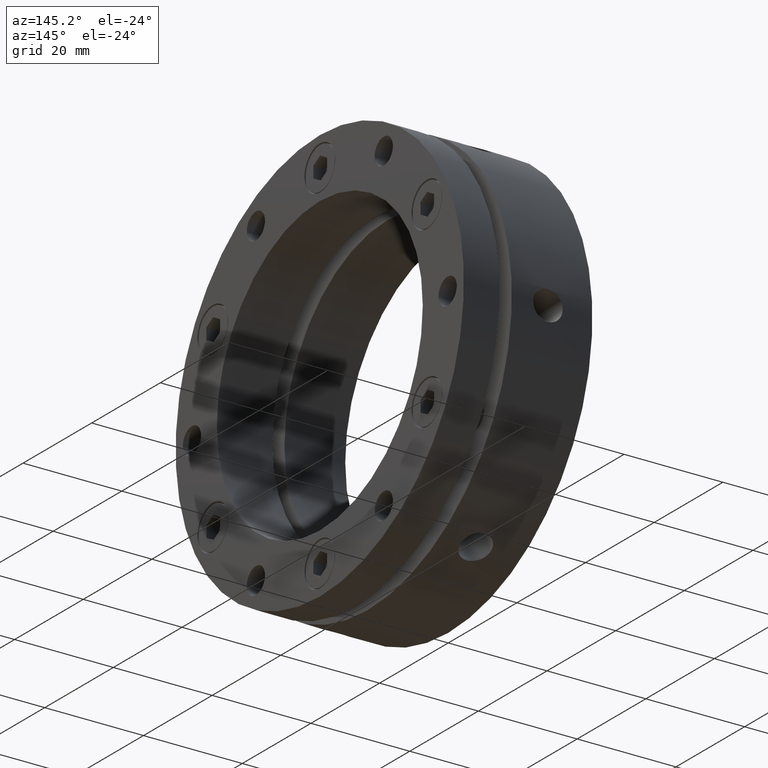
[diagram: clean part render]
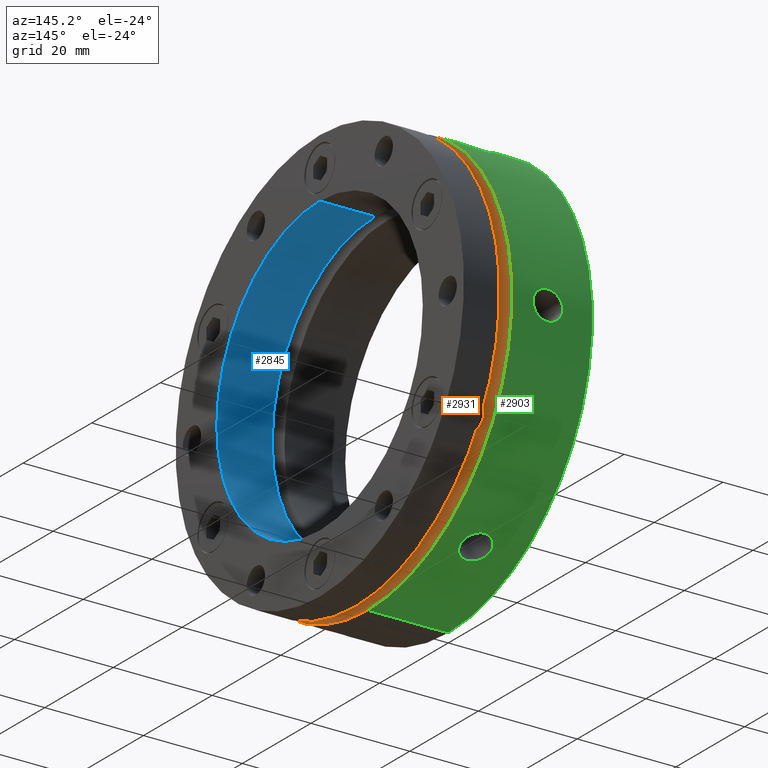
[diagram: same view with three faces highlighted in distinct colors, each labeled with its STEP entity id]
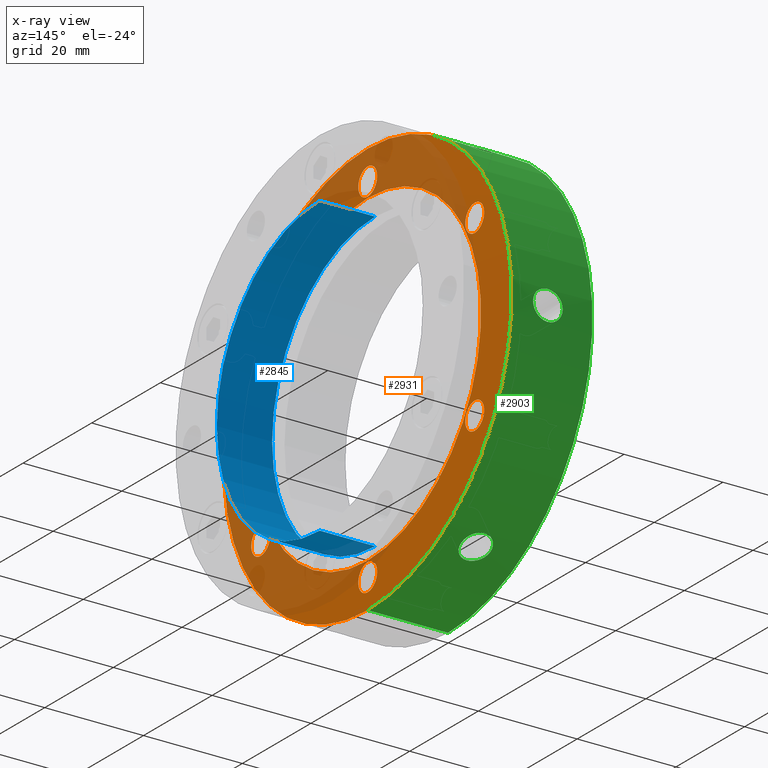
[diagram: x-ray of the same camera — body ghosted, the three highlighted faces saturated]
A machine part, auxiliary view with three faces highlighted in distinct colors.
The next image is the same camera in x-ray (body ghosted, the three faces saturated) — at least one of them is partly hidden behind the body in this view.
Their STEP definitions:

[orange] entity #2931 — the highlighted planar face has unit normal (-1, 0, 0).
#10 = VERTEX_POINT ( 'NONE', #3014 ) ;
#11 = VERTEX_POINT ( 'NONE', #3020 ) ;
#86 = VERTEX_POINT ( 'NONE', #3049 ) ;
#96 = VERTEX_POINT ( 'NONE', #3056 ) ;
#97 = VERTEX_POINT ( 'NONE', #3057 ) ;
#102 = VERTEX_POINT ( 'NONE', #3062 ) ;
#105 = VERTEX_POINT ( 'NONE', #3065 ) ;
#108 = VERTEX_POINT ( 'NONE', #3068 ) ;
#109 = VERTEX_POINT ( 'NONE', #3069 ) ;
#112 = VERTEX_POINT ( 'NONE', #3072 ) ;
#133 = CARTESIAN_POINT ( 'NONE',  ( 16.29999999999999400, 0.0000000000000000000, 0.0000000000000000000 ) ) ;
#134 = DIRECTION ( 'NONE',  ( -1.000000000000000000, -0.0000000000000000000, -0.0000000000000000000 ) ) ;
#135 = DIRECTION ( 'NONE',  ( 0.0000000000000000000, 0.0000000000000000000, -1.000000000000000000 ) ) ;
#154 = CARTESIAN_POINT ( 'NONE',  ( 16.29999999999999400, -31.17691453623981700, -18.00000000000000700 ) ) ;
#155 = DIRECTION ( 'NONE',  ( 1.000000000000000000, 0.0000000000000000000, 0.0000000000000000000 ) ) ;
#156 = DIRECTION ( 'NONE',  ( 0.0000000000000000000, 0.0000000000000000000, -1.000000000000000000 ) ) ;
#166 = CARTESIAN_POINT ( 'NONE',  ( 16.29999999999999400, 0.0000000000000000000, 0.0000000000000000000 ) ) ;
#167 = DIRECTION ( 'NONE',  ( -1.000000000000000000, -0.0000000000000000000, -0.0000000000000000000 ) ) ;
#168 = DIRECTION ( 'NONE',  ( 0.0000000000000000000, 0.0000000000000000000, -1.000000000000000000 ) ) ;
#271 = CARTESIAN_POINT ( 'NONE',  ( 16.29999999999999400, 31.17691453623979900, -18.00000000000002800 ) ) ;
#272 = DIRECTION ( 'NONE',  ( 1.000000000000000000, 0.0000000000000000000, 0.0000000000000000000 ) ) ;
#273 = DIRECTION ( 'NONE',  ( 0.0000000000000000000, 0.0000000000000000000, -1.000000000000000000 ) ) ;
#274 = CARTESIAN_POINT ( 'NONE',  ( 16.29999999999999400, -6.661337999999999900E-015, -36.00000000000002800 ) ) ;
#275 = DIRECTION ( 'NONE',  ( 1.000000000000000000, 0.0000000000000000000, 0.0000000000000000000 ) ) ;
#276 = DIRECTION ( 'NONE',  ( 0.0000000000000000000, 0.0000000000000000000, -1.000000000000000000 ) ) ;
#298 = CARTESIAN_POINT ( 'NONE',  ( 16.29999999999999400, 31.17691453623983500, 17.99999999999998900 ) ) ;
#299 = DIRECTION ( 'NONE',  ( 1.000000000000000000, 0.0000000000000000000, 0.0000000000000000000 ) ) ;
#300 = DIRECTION ( 'NONE',  ( 0.0000000000000000000, 0.0000000000000000000, -1.000000000000000000 ) ) ;
#306 = CARTESIAN_POINT ( 'NONE',  ( 16.29999999999999400, 0.0000000000000000000, 0.0000000000000000000 ) ) ;
#307 = DIRECTION ( 'NONE',  ( 1.000000000000000000, -0.0000000000000000000, -0.0000000000000000000 ) ) ;
#308 = DIRECTION ( 'NONE',  ( 0.0000000000000000000, 0.0000000000000000000, 1.000000000000000000 ) ) ;
#754 = EDGE_LOOP ( 'NONE', ( #1623, #1708 ) ) ;
#769 = EDGE_LOOP ( 'NONE', ( #1671, #1674 ) ) ;
#784 = EDGE_LOOP ( 'NONE', ( #1625, #1618 ) ) ;
#799 = EDGE_LOOP ( 'NONE', ( #1692, #1763 ) ) ;
#1151 = AXIS2_PLACEMENT_3D ( 'NONE', #3315, #3316, #3317 ) ;
#1156 = AXIS2_PLACEMENT_3D ( 'NONE', #3334, #3335, #3336 ) ;
#1159 = AXIS2_PLACEMENT_3D ( 'NONE', #3351, #3352, #3353 ) ;
#1161 = AXIS2_PLACEMENT_3D ( 'NONE', #3368, #3369, #3370 ) ;
#1164 = AXIS2_PLACEMENT_3D ( 'NONE', #3425, #3426, #3427 ) ;
#1166 = AXIS2_PLACEMENT_3D ( 'NONE', #3439, #3440, #3441 ) ;
#1181 = AXIS2_PLACEMENT_3D ( 'NONE', #3555, #3556, #3557 ) ;
#1182 = AXIS2_PLACEMENT_3D ( 'NONE', #3558, #3559, #3560 ) ;
#1183 = AXIS2_PLACEMENT_3D ( 'NONE', #3562, #3563, #3564 ) ;
#1450 = EDGE_LOOP ( 'NONE', ( #1672, #1617 ) ) ;
#1451 = EDGE_LOOP ( 'NONE', ( #1650, #1744 ) ) ;
#1463 = EDGE_LOOP ( 'NONE', ( #1633, #1622 ) ) ;
#1464 = EDGE_LOOP ( 'NONE', ( #1628, #1629 ) ) ;
#1503 = EDGE_CURVE ( 'NONE', #4499, #4498, #2079, .T. ) ;
#1510 = EDGE_CURVE ( 'NONE', #4503, #4502, #2089, .T. ) ;
#1517 = EDGE_CURVE ( 'NONE', #4507, #4506, #2099, .T. ) ;
#1524 = EDGE_CURVE ( 'NONE', #86, #96, #2111, .T. ) ;
#1531 = EDGE_CURVE ( 'NONE', #105, #102, #2120, .T. ) ;
#1536 = EDGE_CURVE ( 'NONE', #112, #97, #2128, .T. ) ;
#1547 = AXIS2_PLACEMENT_3D ( 'NONE', #4160, #4158, #4164 ) ;
#1576 = AXIS2_PLACEMENT_3D ( 'NONE', #133, #134, #135 ) ;
#1583 = AXIS2_PLACEMENT_3D ( 'NONE', #154, #155, #156 ) ;
#1586 = AXIS2_PLACEMENT_3D ( 'NONE', #166, #167, #168 ) ;
#1588 = AXIS2_PLACEMENT_3D ( 'NONE', #271, #272, #273 ) ;
#1589 = AXIS2_PLACEMENT_3D ( 'NONE', #274, #275, #276 ) ;
#1597 = AXIS2_PLACEMENT_3D ( 'NONE', #298, #299, #300 ) ;
#1617 = ORIENTED_EDGE ( 'NONE', *, *, #1531, .F. ) ;
#1618 = ORIENTED_EDGE ( 'NONE', *, *, #1503, .F. ) ;
#1622 = ORIENTED_EDGE ( 'NONE', *, *, #4684, .F. ) ;
#1623 = ORIENTED_EDGE ( 'NONE', *, *, #4608, .F. ) ;
#1625 = ORIENTED_EDGE ( 'NONE', *, *, #4616, .F. ) ;
#1628 = ORIENTED_EDGE ( 'NONE', *, *, #4599, .F. ) ;
#1629 = ORIENTED_EDGE ( 'NONE', *, *, #1524, .F. ) ;
#1633 = ORIENTED_EDGE ( 'NONE', *, *, #2179, .F. ) ;
#1650 = ORIENTED_EDGE ( 'NONE', *, *, #2178, .F. ) ;
#1671 = ORIENTED_EDGE ( 'NONE', *, *, #4607, .F. ) ;
#1672 = ORIENTED_EDGE ( 'NONE', *, *, #2177, .F. ) ;
#1674 = ORIENTED_EDGE ( 'NONE', *, *, #1510, .F. ) ;
#1692 = ORIENTED_EDGE ( 'NONE', *, *, #4602, .F. ) ;
#1708 = ORIENTED_EDGE ( 'NONE', *, *, #1517, .F. ) ;
#1744 = ORIENTED_EDGE ( 'NONE', *, *, #1536, .F. ) ;
#1763 = ORIENTED_EDGE ( 'NONE', *, *, #4529, .F. ) ;
#2079 = CIRCLE ( 'NONE', #1151, 2.750000000000000900 ) ;
#2089 = CIRCLE ( 'NONE', #1156, 2.749999999999999100 ) ;
#2099 = CIRCLE ( 'NONE', #1159, 2.750000000000002700 ) ;
#2111 = CIRCLE ( 'NONE', #1161, 2.749999999999999100 ) ;
#2120 = CIRCLE ( 'NONE', #1164, 2.749999999999999100 ) ;
#2128 = CIRCLE ( 'NONE', #1166, 2.750000000000002700 ) ;
#2147 = CIRCLE ( 'NONE', #1181, 2.749999999999999100 ) ;
#2149 = CIRCLE ( 'NONE', #1182, 2.750000000000002700 ) ;
#2150 = CIRCLE ( 'NONE', #1183, 33.00000000000000700 ) ;
#2177 = EDGE_CURVE ( 'NONE', #102, #105, #2147, .T. ) ;
#2178 = EDGE_CURVE ( 'NONE', #97, #112, #2149, .T. ) ;
#2179 = EDGE_CURVE ( 'NONE', #108, #109, #2150, .T. ) ;
#2514 = FACE_BOUND ( 'NONE', #1463, .T. ) ;
#2516 = FACE_BOUND ( 'NONE', #1464, .T. ) ;
#2518 = FACE_BOUND ( 'NONE', #1450, .T. ) ;
#2520 = FACE_BOUND ( 'NONE', #754, .T. ) ;
#2522 = FACE_BOUND ( 'NONE', #1451, .T. ) ;
#2523 = FACE_BOUND ( 'NONE', #769, .T. ) ;
#2524 = FACE_BOUND ( 'NONE', #784, .T. ) ;
#2525 = FACE_OUTER_BOUND ( 'NONE', #799, .T. ) ;
#2596 = CIRCLE ( 'NONE', #1576, 41.99999999999999300 ) ;
#2606 = CIRCLE ( 'NONE', #1583, 2.749999999999999100 ) ;
#2609 = CIRCLE ( 'NONE', #1586, 41.99999999999999300 ) ;
#2610 = CIRCLE ( 'NONE', #1588, 2.749999999999999100 ) ;
#2612 = CIRCLE ( 'NONE', #1589, 2.750000000000002700 ) ;
#2620 = CIRCLE ( 'NONE', #1597, 2.750000000000000900 ) ;
#2622 = CIRCLE ( 'NONE', #4531, 33.00000000000000700 ) ;
#2931 = ADVANCED_FACE ( 'NONE', ( #2514, #2522, #2518, #2516, #2520, #2523, #2524, #2525 ), #4162, .F. ) ;
#3014 = CARTESIAN_POINT ( 'NONE',  ( 16.29999999999999400, 0.0000000000000000000, -41.99999999999999300 ) ) ;
#3020 = CARTESIAN_POINT ( 'NONE',  ( 16.29999999999999400, 5.143516556418882500E-015, 41.99999999999999300 ) ) ;
#3049 = CARTESIAN_POINT ( 'NONE',  ( 16.29999999999999400, -31.17691453623981700, -15.25000000000000500 ) ) ;
#3056 = CARTESIAN_POINT ( 'NONE',  ( 16.29999999999999400, -31.17691453623981700, -20.75000000000000400 ) ) ;
#3057 = CARTESIAN_POINT ( 'NONE',  ( 16.29999999999999400, 0.0000000000000000000, 33.25000000000002100 ) ) ;
#3062 = CARTESIAN_POINT ( 'NONE',  ( 16.29999999999999400, -31.17691453623980600, 15.25000000000001800 ) ) ;
#3065 = CARTESIAN_POINT ( 'NONE',  ( 16.29999999999999400, -31.17691453623980600, 20.75000000000001400 ) ) ;
#3068 = CARTESIAN_POINT ( 'NONE',  ( 16.29999999999999400, 0.0000000000000000000, 33.00000000000000700 ) ) ;
#3069 = CARTESIAN_POINT ( 'NONE',  ( 16.29999999999999400, 4.041334437186267000E-015, -33.00000000000000700 ) ) ;
#3072 = CARTESIAN_POINT ( 'NONE',  ( 16.29999999999999400, 3.367778697655217600E-016, 38.75000000000002800 ) ) ;
#3315 = CARTESIAN_POINT ( 'NONE',  ( 16.29999999999999400, 31.17691453623983500, 17.99999999999998900 ) ) ;
#3316 = DIRECTION ( 'NONE',  ( 1.000000000000000000, 0.0000000000000000000, 0.0000000000000000000 ) ) ;
#3317 = DIRECTION ( 'NONE',  ( 0.0000000000000000000, 0.0000000000000000000, -1.000000000000000000 ) ) ;
#3334 = CARTESIAN_POINT ( 'NONE',  ( 16.29999999999999400, 31.17691453623979900, -18.00000000000002800 ) ) ;
#3335 = DIRECTION ( 'NONE',  ( 1.000000000000000000, 0.0000000000000000000, 0.0000000000000000000 ) ) ;
#3336 = DIRECTION ( 'NONE',  ( 0.0000000000000000000, 0.0000000000000000000, -1.000000000000000000 ) ) ;
#3351 = CARTESIAN_POINT ( 'NONE',  ( 16.29999999999999400, -6.661337999999999900E-015, -36.00000000000002800 ) ) ;
#3352 = DIRECTION ( 'NONE',  ( 1.000000000000000000, 0.0000000000000000000, 0.0000000000000000000 ) ) ;
#3353 = DIRECTION ( 'NONE',  ( 0.0000000000000000000, 0.0000000000000000000, -1.000000000000000000 ) ) ;
#3368 = CARTESIAN_POINT ( 'NONE',  ( 16.29999999999999400, -31.17691453623981700, -18.00000000000000700 ) ) ;
#3369 = DIRECTION ( 'NONE',  ( 1.000000000000000000, 0.0000000000000000000, 0.0000000000000000000 ) ) ;
#3370 = DIRECTION ( 'NONE',  ( 0.0000000000000000000, 0.0000000000000000000, -1.000000000000000000 ) ) ;
#3425 = CARTESIAN_POINT ( 'NONE',  ( 16.29999999999999400, -31.17691453623980600, 18.00000000000001400 ) ) ;
#3426 = DIRECTION ( 'NONE',  ( 1.000000000000000000, 0.0000000000000000000, 0.0000000000000000000 ) ) ;
#3427 = DIRECTION ( 'NONE',  ( 0.0000000000000000000, 0.0000000000000000000, -1.000000000000000000 ) ) ;
#3439 = CARTESIAN_POINT ( 'NONE',  ( 16.29999999999999400, 0.0000000000000000000, 36.00000000000002800 ) ) ;
#3440 = DIRECTION ( 'NONE',  ( 1.000000000000000000, 0.0000000000000000000, 0.0000000000000000000 ) ) ;
#3441 = DIRECTION ( 'NONE',  ( 0.0000000000000000000, 0.0000000000000000000, -1.000000000000000000 ) ) ;
#3555 = CARTESIAN_POINT ( 'NONE',  ( 16.29999999999999400, -31.17691453623980600, 18.00000000000001400 ) ) ;
#3556 = DIRECTION ( 'NONE',  ( 1.000000000000000000, 0.0000000000000000000, 0.0000000000000000000 ) ) ;
#3557 = DIRECTION ( 'NONE',  ( 0.0000000000000000000, 0.0000000000000000000, -1.000000000000000000 ) ) ;
#3558 = CARTESIAN_POINT ( 'NONE',  ( 16.29999999999999400, 0.0000000000000000000, 36.00000000000002800 ) ) ;
#3559 = DIRECTION ( 'NONE',  ( 1.000000000000000000, 0.0000000000000000000, 0.0000000000000000000 ) ) ;
#3560 = DIRECTION ( 'NONE',  ( 0.0000000000000000000, 0.0000000000000000000, -1.000000000000000000 ) ) ;
#3562 = CARTESIAN_POINT ( 'NONE',  ( 16.29999999999999400, 0.0000000000000000000, 0.0000000000000000000 ) ) ;
#3563 = DIRECTION ( 'NONE',  ( 1.000000000000000000, -0.0000000000000000000, -0.0000000000000000000 ) ) ;
#3564 = DIRECTION ( 'NONE',  ( 0.0000000000000000000, 0.0000000000000000000, 1.000000000000000000 ) ) ;
#4158 = DIRECTION ( 'NONE',  ( -1.000000000000000000, 0.0000000000000000000, 0.0000000000000000000 ) ) ;
#4160 = CARTESIAN_POINT ( 'NONE',  ( 16.29999999999999400, 37.50000000000000700, 0.0000000000000000000 ) ) ;
#4162 = PLANE ( 'NONE',  #1547 ) ;
#4164 = DIRECTION ( 'NONE',  ( 0.0000000000000000000, 0.0000000000000000000, 1.000000000000000000 ) ) ;
#4257 = CARTESIAN_POINT ( 'NONE',  ( 16.29999999999999400, 31.17691453623983500, 15.24999999999998800 ) ) ;
#4258 = CARTESIAN_POINT ( 'NONE',  ( 16.29999999999999400, 31.17691453623983500, 20.74999999999998600 ) ) ;
#4261 = CARTESIAN_POINT ( 'NONE',  ( 16.29999999999999400, 31.17691453623979900, -20.75000000000002800 ) ) ;
#4262 = CARTESIAN_POINT ( 'NONE',  ( 16.29999999999999400, 31.17691453623979900, -15.25000000000003000 ) ) ;
#4265 = CARTESIAN_POINT ( 'NONE',  ( 16.29999999999999400, -6.661337999999999900E-015, -38.75000000000002800 ) ) ;
#4266 = CARTESIAN_POINT ( 'NONE',  ( 16.29999999999999400, -6.324560130234478200E-015, -33.25000000000002100 ) ) ;
#4498 = VERTEX_POINT ( 'NONE', #4257 ) ;
#4499 = VERTEX_POINT ( 'NONE', #4258 ) ;
#4502 = VERTEX_POINT ( 'NONE', #4261 ) ;
#4503 = VERTEX_POINT ( 'NONE', #4262 ) ;
#4506 = VERTEX_POINT ( 'NONE', #4265 ) ;
#4507 = VERTEX_POINT ( 'NONE', #4266 ) ;
#4529 = EDGE_CURVE ( 'NONE', #11, #10, #2596, .T. ) ;
#4531 = AXIS2_PLACEMENT_3D ( 'NONE', #306, #307, #308 ) ;
#4599 = EDGE_CURVE ( 'NONE', #96, #86, #2606, .T. ) ;
#4602 = EDGE_CURVE ( 'NONE', #10, #11, #2609, .T. ) ;
#4607 = EDGE_CURVE ( 'NONE', #4502, #4503, #2610, .T. ) ;
#4608 = EDGE_CURVE ( 'NONE', #4506, #4507, #2612, .T. ) ;
#4616 = EDGE_CURVE ( 'NONE', #4498, #4499, #2620, .T. ) ;
#4684 = EDGE_CURVE ( 'NONE', #109, #108, #2622, .T. ) ;

[blue] entity #2845 — the highlighted cylindrical surface (partial cylindrical patch) has radius 30 mm, axis along (1, 0, 0).
#302 = CARTESIAN_POINT ( 'NONE',  ( 25.99999999999999300, 0.0000000000000000000, 0.0000000000000000000 ) ) ;
#303 = DIRECTION ( 'NONE',  ( -1.000000000000000000, -0.0000000000000000000, -0.0000000000000000000 ) ) ;
#304 = DIRECTION ( 'NONE',  ( 0.0000000000000000000, 0.0000000000000000000, -1.000000000000000000 ) ) ;
#830 = EDGE_CURVE ( 'NONE', #1885, #1890, #1970, .T. ) ;
#891 = ORIENTED_EDGE ( 'NONE', *, *, #2738, .F. ) ;
#892 = ORIENTED_EDGE ( 'NONE', *, *, #4617, .F. ) ;
#893 = ORIENTED_EDGE ( 'NONE', *, *, #830, .T. ) ;
#894 = ORIENTED_EDGE ( 'NONE', *, *, #1117, .T. ) ;
#1117 = EDGE_CURVE ( 'NONE', #1884, #1885, #2020, .T. ) ;
#1211 = AXIS2_PLACEMENT_3D ( 'NONE', #302, #303, #304 ) ;
#1684 = EDGE_LOOP ( 'NONE', ( #894, #893, #892, #891 ) ) ;
#1839 = AXIS2_PLACEMENT_3D ( 'NONE', #3883, #3881, #3879 ) ;
#1884 = VERTEX_POINT ( 'NONE', #3452 ) ;
#1885 = VERTEX_POINT ( 'NONE', #3453 ) ;
#1889 = VERTEX_POINT ( 'NONE', #3457 ) ;
#1890 = VERTEX_POINT ( 'NONE', #3458 ) ;
#1970 = LINE ( 'NONE', #3111, #1975 ) ;
#1975 = VECTOR ( 'NONE', #3114, 1000.000000000000000 ) ;
#2020 = CIRCLE ( 'NONE', #2980, 30.00000000000000000 ) ;
#2155 = LINE ( 'NONE', #3578, #2158 ) ;
#2158 = VECTOR ( 'NONE', #3561, 1000.000000000000000 ) ;
#2303 = FACE_OUTER_BOUND ( 'NONE', #1684, .T. ) ;
#2314 = CYLINDRICAL_SURFACE ( 'NONE', #1839, 30.00000000000000000 ) ;
#2621 = CIRCLE ( 'NONE', #1211, 30.00000000000000000 ) ;
#2738 = EDGE_CURVE ( 'NONE', #1884, #1889, #2155, .T. ) ;
#2845 = ADVANCED_FACE ( 'NONE', ( #2303 ), #2314, .F. ) ;
#2980 = AXIS2_PLACEMENT_3D ( 'NONE', #3193, #3194, #3195 ) ;
#3111 = CARTESIAN_POINT ( 'NONE',  ( 12.99999999999999100, 3.673940397442059200E-015, 30.00000000000000000 ) ) ;
#3114 = DIRECTION ( 'NONE',  ( 1.000000000000000000, 0.0000000000000000000, 0.0000000000000000000 ) ) ;
#3193 = CARTESIAN_POINT ( 'NONE',  ( 14.80000000000000400, 0.0000000000000000000, 0.0000000000000000000 ) ) ;
#3194 = DIRECTION ( 'NONE',  ( -1.000000000000000000, -0.0000000000000000000, -0.0000000000000000000 ) ) ;
#3195 = DIRECTION ( 'NONE',  ( 0.0000000000000000000, 0.0000000000000000000, -1.000000000000000000 ) ) ;
#3452 = CARTESIAN_POINT ( 'NONE',  ( 14.80000000000000400, 0.0000000000000000000, -30.00000000000000000 ) ) ;
#3453 = CARTESIAN_POINT ( 'NONE',  ( 14.80000000000000400, 3.673940397442059200E-015, 30.00000000000000000 ) ) ;
#3457 = CARTESIAN_POINT ( 'NONE',  ( 25.99999999999999300, 0.0000000000000000000, -30.00000000000000000 ) ) ;
#3458 = CARTESIAN_POINT ( 'NONE',  ( 25.99999999999999300, 3.673940397442059200E-015, 30.00000000000000000 ) ) ;
#3561 = DIRECTION ( 'NONE',  ( 1.000000000000000000, 0.0000000000000000000, 0.0000000000000000000 ) ) ;
#3578 = CARTESIAN_POINT ( 'NONE',  ( 12.99999999999999100, 0.0000000000000000000, -30.00000000000000000 ) ) ;
#3879 = DIRECTION ( 'NONE',  ( 0.0000000000000000000, 0.0000000000000000000, -1.000000000000000000 ) ) ;
#3881 = DIRECTION ( 'NONE',  ( 1.000000000000000000, 0.0000000000000000000, 0.0000000000000000000 ) ) ;
#3883 = CARTESIAN_POINT ( 'NONE',  ( 12.99999999999999100, 0.0000000000000000000, 0.0000000000000000000 ) ) ;
#4617 = EDGE_CURVE ( 'NONE', #1889, #1890, #2621, .T. ) ;

[green] entity #2903 — the highlighted cylindrical surface (partial cylindrical patch) has radius 42 mm, axis along (1, 0, 0).
#10 = VERTEX_POINT ( 'NONE', #3014 ) ;
#11 = VERTEX_POINT ( 'NONE', #3020 ) ;
#13 = VERTEX_POINT ( 'NONE', #3022 ) ;
#15 = VERTEX_POINT ( 'NONE', #3024 ) ;
#16 = VERTEX_POINT ( 'NONE', #3025 ) ;
#17 = VERTEX_POINT ( 'NONE', #3026 ) ;
#18 = VERTEX_POINT ( 'NONE', #3027 ) ;
#19 = VERTEX_POINT ( 'NONE', #3028 ) ;
#20 = VERTEX_POINT ( 'NONE', #3029 ) ;
#26 = VERTEX_POINT ( 'NONE', #3035 ) ;
#66 = AXIS2_PLACEMENT_3D ( 'NONE', #4063, #4068, #4067 ) ;
#120 = CARTESIAN_POINT ( 'NONE',  ( 10.32777306953377100, 23.29257486986393700, -34.94941432322077900 ) ) ;
#121 = CARTESIAN_POINT ( 'NONE',  ( 9.966766644062831300, 23.41703039248159600, -34.86614824155313400 ) ) ;
#122 = CARTESIAN_POINT ( 'NONE',  ( 9.777624557390540300, 23.46483916964225400, -34.83393182916697100 ) ) ;
#123 = CARTESIAN_POINT ( 'NONE',  ( 9.390377803947187000, 23.52869816040058700, -34.79082992417673400 ) ) ;
#124 = CARTESIAN_POINT ( 'NONE',  ( 9.195701865672591100, 23.54443627700671000, -34.78015986734348500 ) ) ;
#125 = CARTESIAN_POINT ( 'NONE',  ( 8.999999999999985800, 23.54443627700670300, -34.78015986734347800 ) ) ;
#126 = DIRECTION ( 'NONE',  ( 1.000000000000000000, 0.0000000000000000000, 0.0000000000000000000 ) ) ;
#127 = CARTESIAN_POINT ( 'NONE',  ( 12.99999999999998800, 0.0000000000000000000, -41.99999999999999300 ) ) ;
#128 = CARTESIAN_POINT ( 'NONE',  ( 12.99999999999998800, 5.143516556418882500E-015, 41.99999999999999300 ) ) ;
#129 = CARTESIAN_POINT ( 'NONE',  ( -1.387778780781445700E-014, 0.0000000000000000000, 0.0000000000000000000 ) ) ;
#130 = DIRECTION ( 'NONE',  ( 1.000000000000000000, 0.0000000000000000000, 0.0000000000000000000 ) ) ;
#131 = DIRECTION ( 'NONE',  ( 0.0000000000000000000, 0.0000000000000000000, -1.000000000000000000 ) ) ;
#132 = DIRECTION ( 'NONE',  ( 1.000000000000000000, 0.0000000000000000000, 0.0000000000000000000 ) ) ;
#133 = CARTESIAN_POINT ( 'NONE',  ( 16.29999999999999400, 0.0000000000000000000, 0.0000000000000000000 ) ) ;
#134 = DIRECTION ( 'NONE',  ( -1.000000000000000000, -0.0000000000000000000, -0.0000000000000000000 ) ) ;
#135 = DIRECTION ( 'NONE',  ( 0.0000000000000000000, 0.0000000000000000000, -1.000000000000000000 ) ) ;
#1025 = ORIENTED_EDGE ( 'NONE', *, *, #4530, .F. ) ;
#1026 = ORIENTED_EDGE ( 'NONE', *, *, #4529, .T. ) ;
#1027 = ORIENTED_EDGE ( 'NONE', *, *, #4528, .T. ) ;
#1028 = ORIENTED_EDGE ( 'NONE', *, *, #4527, .T. ) ;
#1029 = ORIENTED_EDGE ( 'NONE', *, *, #4526, .T. ) ;
#1030 = ORIENTED_EDGE ( 'NONE', *, *, #4525, .T. ) ;
#1031 = ORIENTED_EDGE ( 'NONE', *, *, #4524, .T. ) ;
#1032 = ORIENTED_EDGE ( 'NONE', *, *, #4523, .T. ) ;
#1033 = ORIENTED_EDGE ( 'NONE', *, *, #4521, .T. ) ;
#1034 = ORIENTED_EDGE ( 'NONE', *, *, #4522, .T. ) ;
#1127 = CARTESIAN_POINT ( 'NONE',  ( 10.50230680320481200, 23.21498749985252600, -35.00109141780330900 ) ) ;
#1575 = AXIS2_PLACEMENT_3D ( 'NONE', #129, #130, #131 ) ;
#1576 = AXIS2_PLACEMENT_3D ( 'NONE', #133, #134, #135 ) ;
#1603 = B_SPLINE_CURVE_WITH_KNOTS ( 'NONE', 3,
 ( #4294, #4295, #4330, #4331, #4332, #4333, #4334, #4335, #4336, #4337, #4338, #4339, #4340, #4341, #4342, #4343, #4344, #4345, #4346, #4347, #4348, #4349, #4350, #4351, #4352, #4353, #4354, #4355, #4356, #4357, #4358, #4359, #4360, #4361 ),
 .UNSPECIFIED., .F., .F.,
 ( 4, 2, 2, 2, 2, 2, 2, 2, 2, 2, 2, 2, 2, 2, 2, 2, 4 ),
 ( 0.01407260901735648800, 0.01465888135920776300, 0.01524515370105903600, 0.01583142604291031000, 0.01641769838476158200, 0.01700397072661285300, 0.01759024306846412500, 0.01817651541031539700, 0.01876278775216667200, 0.01934906009401794400, 0.01993533243586921600, 0.02052160477772048800, 0.02110787711957175900, 0.02169414946142303500, 0.02228042180327430600, 0.02286669414512557800, 0.02345296648697685000 ),
 .UNSPECIFIED. ) ;
#1605 = B_SPLINE_CURVE_WITH_KNOTS ( 'NONE', 3,
 ( #4291, #4287, #4296, #4297, #4298, #4299, #4300, #4301, #4302, #4303, #4304, #4305, #4306, #4307, #4308, #4309, #4310, #4311, #4312, #4313, #4314, #4315, #4316, #4317, #4318, #4319, #4320, #4321, #4322, #4323, #4324, #4325, #4326, #4327 ),
 .UNSPECIFIED., .F., .F.,
 ( 4, 2, 2, 2, 2, 2, 2, 2, 2, 2, 2, 2, 2, 2, 2, 2, 4 ),
 ( 0.004692251542795059500, 0.005278523884955148500, 0.005864796227115238300, 0.006451068569275327300, 0.007037340911435416300, 0.007623613253595505300, 0.008209885595755594300, 0.008796157937915685000, 0.009382430280075772200, 0.009968702622235863000, 0.01055497496439595000, 0.01114124730655604100, 0.01172751964871613000, 0.01231379199087621900, 0.01290006433303631000, 0.01348633667519639700, 0.01407260901735648800 ),
 .UNSPECIFIED. ) ;
#1606 = B_SPLINE_CURVE_WITH_KNOTS ( 'NONE', 3,
 ( #4430, #4431, #4464, #4465, #4466, #4467, #4468, #4469, #4470, #4471, #4472, #4473, #4474, #4475, #4476, #4477, #4478, #4479, #4480, #4481, #4482, #4483, #4484, #4485, #4486, #4487, #3367, #1127, #120, #121, #122, #123, #124, #125 ),
 .UNSPECIFIED., .F., .F.,
 ( 4, 2, 2, 2, 2, 2, 2, 2, 2, 2, 2, 2, 2, 2, 2, 2, 4 ),
 ( 0.004692251542795049100, 0.005278523884955138100, 0.005864796227115227900, 0.006451068569275316900, 0.007037340911435405900, 0.007623613253595494900, 0.008209885595755583900, 0.008796157937915674600, 0.009382430280075761800, 0.009968702622235852500, 0.01055497496439594000, 0.01114124730655603100, 0.01172751964871612000, 0.01231379199087620800, 0.01290006433303629900, 0.01348633667519638600, 0.01407260901735647700 ),
 .UNSPECIFIED. ) ;
#1610 = B_SPLINE_CURVE_WITH_KNOTS ( 'NONE', 3,
 ( #4328, #4329, #4364, #4365, #4366, #4367, #4368, #4369, #4370, #4371, #4372, #4373, #4374, #4375, #4376, #4377, #4378, #4379, #4380, #4381, #4382, #4383, #4384, #4385, #4386, #4387, #4388, #4389, #4390, #4391, #4392, #4393, #4394, #4395 ),
 .UNSPECIFIED., .F., .F.,
 ( 4, 2, 2, 2, 2, 2, 2, 2, 2, 2, 2, 2, 2, 2, 2, 2, 4 ),
 ( 0.01407260901735648600, 0.01465888135920776300, 0.01524515370105904000, 0.01583142604291031000, 0.01641769838476158200, 0.01700397072661285300, 0.01759024306846412900, 0.01817651541031539700, 0.01876278775216667200, 0.01934906009401794400, 0.01993533243586921600, 0.02052160477772048800, 0.02110787711957175900, 0.02169414946142303500, 0.02228042180327430300, 0.02286669414512557800, 0.02345296648697685000 ),
 .UNSPECIFIED. ) ;
#1611 = B_SPLINE_CURVE_WITH_KNOTS ( 'NONE', 3,
 ( #4362, #4363, #4398, #4399, #4400, #4401, #4402, #4403, #4404, #4405, #4406, #4407, #4408, #4409, #4410, #4411, #4412, #4413, #4414, #4415, #4416, #4417, #4418, #4419, #4420, #4421, #4422, #4423, #4424, #4425, #4426, #4427, #4428, #4429 ),
 .UNSPECIFIED., .F., .F.,
 ( 4, 2, 2, 2, 2, 2, 2, 2, 2, 2, 2, 2, 2, 2, 2, 2, 4 ),
 ( 0.004692251542795052500, 0.005278523884955142400, 0.005864796227115231400, 0.006451068569275321200, 0.007037340911435411100, 0.007623613253595500900, 0.008209885595755590800, 0.008796157937915679800, 0.009382430280075768800, 0.009968702622235859500, 0.01055497496439595000, 0.01114124730655603700, 0.01172751964871612800, 0.01231379199087621900, 0.01290006433303630600, 0.01348633667519639700, 0.01407260901735648800 ),
 .UNSPECIFIED. ) ;
#1612 = B_SPLINE_CURVE_WITH_KNOTS ( 'NONE', 3,
 ( #4396, #4397, #4432, #4433, #4434, #4435, #4436, #4437, #4438, #4439, #4440, #4441, #4442, #4443, #4444, #4445, #4446, #4447, #4448, #4449, #4450, #4451, #4452, #4453, #4454, #4455, #4456, #4457, #4458, #4459, #4460, #4461, #4462, #4463 ),
 .UNSPECIFIED., .F., .F.,
 ( 4, 2, 2, 2, 2, 2, 2, 2, 2, 2, 2, 2, 2, 2, 2, 2, 4 ),
 ( 0.01407260901735647700, 0.01465888135920774700, 0.01524515370105901700, 0.01583142604291028900, 0.01641769838476156400, 0.01700397072661283600, 0.01759024306846410800, 0.01817651541031538300, 0.01876278775216665500, 0.01934906009401792700, 0.01993533243586919800, 0.02052160477772047000, 0.02110787711957174500, 0.02169414946142301700, 0.02228042180327428900, 0.02286669414512556400, 0.02345296648697683600 ),
 .UNSPECIFIED. ) ;
#1731 = EDGE_LOOP ( 'NONE', ( #1032, #1031 ) ) ;
#1738 = EDGE_LOOP ( 'NONE', ( #1030, #1029 ) ) ;
#1752 = EDGE_LOOP ( 'NONE', ( #1034, #1033 ) ) ;
#1753 = EDGE_LOOP ( 'NONE', ( #1028, #1027, #1026, #1025 ) ) ;
#2451 = FACE_BOUND ( 'NONE', #1738, .T. ) ;
#2453 = FACE_BOUND ( 'NONE', #1752, .T. ) ;
#2457 = FACE_OUTER_BOUND ( 'NONE', #1753, .T. ) ;
#2458 = FACE_BOUND ( 'NONE', #1731, .T. ) ;
#2462 = CYLINDRICAL_SURFACE ( 'NONE', #66, 41.99999999999999300 ) ;
#2593 = CIRCLE ( 'NONE', #1575, 41.99999999999999300 ) ;
#2595 = LINE ( 'NONE', #128, #2597 ) ;
#2596 = CIRCLE ( 'NONE', #1576, 41.99999999999999300 ) ;
#2597 = VECTOR ( 'NONE', #132, 1000.000000000000000 ) ;
#2598 = LINE ( 'NONE', #127, #2600 ) ;
#2600 = VECTOR ( 'NONE', #126, 1000.000000000000000 ) ;
#2903 = ADVANCED_FACE ( 'NONE', ( #2453, #2458, #2451, #2457 ), #2462, .T. ) ;
#3014 = CARTESIAN_POINT ( 'NONE',  ( 16.29999999999999400, 0.0000000000000000000, -41.99999999999999300 ) ) ;
#3020 = CARTESIAN_POINT ( 'NONE',  ( 16.29999999999999400, 5.143516556418882500E-015, 41.99999999999999300 ) ) ;
#3022 = CARTESIAN_POINT ( 'NONE',  ( -1.387778780781445700E-014, 5.143516556418882500E-015, 41.99999999999999300 ) ) ;
#3024 = CARTESIAN_POINT ( 'NONE',  ( 8.999999999999985800, 18.34828385430007500, -37.78015986734348500 ) ) ;
#3025 = CARTESIAN_POINT ( 'NONE',  ( -1.387778780781445700E-014, 0.0000000000000000000, -41.99999999999999300 ) ) ;
#3026 = CARTESIAN_POINT ( 'NONE',  ( 8.999999999999985800, 41.89272013130681700, -3.000000000000042200 ) ) ;
#3027 = CARTESIAN_POINT ( 'NONE',  ( 8.999999999999985800, 23.54443627700670300, -34.78015986734347800 ) ) ;
#3028 = CARTESIAN_POINT ( 'NONE',  ( 8.999999999999985800, 18.34828385430014200, 37.78015986734345000 ) ) ;
#3029 = CARTESIAN_POINT ( 'NONE',  ( 8.999999999999985800, 23.54443627700676700, 34.78015986734343600 ) ) ;
#3035 = CARTESIAN_POINT ( 'NONE',  ( 8.999999999999985800, 41.89272013130682400, 2.999999999999957800 ) ) ;
#3367 = CARTESIAN_POINT ( 'NONE',  ( 10.83034168531925800, 23.03174939573135700, -35.12193851181853400 ) ) ;
#4063 = CARTESIAN_POINT ( 'NONE',  ( 12.99999999999998800, 0.0000000000000000000, 0.0000000000000000000 ) ) ;
#4067 = DIRECTION ( 'NONE',  ( 0.0000000000000000000, 0.0000000000000000000, -1.000000000000000000 ) ) ;
#4068 = DIRECTION ( 'NONE',  ( 1.000000000000000000, 0.0000000000000000000, 0.0000000000000000000 ) ) ;
#4287 = CARTESIAN_POINT ( 'NONE',  ( 9.195702098611667100, 23.54443627700676300, 34.78015986734343600 ) ) ;
#4291 = CARTESIAN_POINT ( 'NONE',  ( 8.999999999999985800, 23.54443627700676700, 34.78015986734343600 ) ) ;
#4294 = CARTESIAN_POINT ( 'NONE',  ( 8.999999999999985800, 18.34828385430014200, 37.78015986734345000 ) ) ;
#4295 = CARTESIAN_POINT ( 'NONE',  ( 8.804298134430462500, 18.34828385430014600, 37.78015986734345700 ) ) ;
#4296 = CARTESIAN_POINT ( 'NONE',  ( 9.394481186594182600, 23.52818066251644100, 34.79117983177882000 ) ) ;
#4297 = CARTESIAN_POINT ( 'NONE',  ( 9.779191086268483000, 23.46441930675112900, 34.83421458813374000 ) ) ;
#4298 = CARTESIAN_POINT ( 'NONE',  ( 9.966181678907283000, 23.41726471791952600, 34.86599192279577900 ) ) ;
#4299 = CARTESIAN_POINT ( 'NONE',  ( 10.32937541182880300, 23.29198971610796700, 34.94980535989148500 ) ) ;
#4300 = CARTESIAN_POINT ( 'NONE',  ( 10.50491705497772300, 23.21361270445304100, 35.00200027881303600 ) ) ;
#4301 = CARTESIAN_POINT ( 'NONE',  ( 10.82982896583911100, 23.03195198428438700, 35.12180271717256400 ) ) ;
#4302 = CARTESIAN_POINT ( 'NONE',  ( 10.98128604015730800, 22.92804558339596000, 35.18983350287545200 ) ) ;
#4303 = CARTESIAN_POINT ( 'NONE',  ( 11.26133246761766100, 22.69260204005540500, 35.34212032244318600 ) ) ;
#4304 = CARTESIAN_POINT ( 'NONE',  ( 11.38547439397143200, 22.56475999290076100, 35.42397536256916600 ) ) ;
#4305 = CARTESIAN_POINT ( 'NONE',  ( 11.60263425019564900, 22.28988174980573300, 35.59757850760076500 ) ) ;
#4306 = CARTESIAN_POINT ( 'NONE',  ( 11.69652081363367700, 22.14101769084388100, 35.69045223365901600 ) ) ;
#4307 = CARTESIAN_POINT ( 'NONE',  ( 11.84701121364354900, 21.83124564563639000, 35.88077143247117100 ) ) ;
#4308 = CARTESIAN_POINT ( 'NONE',  ( 11.90371099739915900, 21.67126618765346200, 35.97767617119714600 ) ) ;
#4309 = CARTESIAN_POINT ( 'NONE',  ( 11.98039329992507600, 21.34099436421389500, 36.17456178590488500 ) ) ;
#4310 = CARTESIAN_POINT ( 'NONE',  ( 12.00013855662810200, 21.16984155897510400, 36.27502031710782400 ) ) ;
#4311 = CARTESIAN_POINT ( 'NONE',  ( 11.99985996181589200, 20.82650681281473800, 36.47322174711847300 ) ) ;
#4312 = CARTESIAN_POINT ( 'NONE',  ( 11.98027083798314300, 20.65701698473761300, 36.56944637584266600 ) ) ;
#4313 = CARTESIAN_POINT ( 'NONE',  ( 11.90378018200338600, 20.32229057878408800, 36.75651322656753500 ) ) ;
#4314 = CARTESIAN_POINT ( 'NONE',  ( 11.84594316096082200, 20.15529415611421600, 36.84829853645491900 ) ) ;
#4315 = CARTESIAN_POINT ( 'NONE',  ( 11.69512843544729600, 19.83585282130023600, 37.02123620846435200 ) ) ;
#4316 = CARTESIAN_POINT ( 'NONE',  ( 11.60287871710528900, 19.68376729212572200, 37.10223579319255500 ) ) ;
#4317 = CARTESIAN_POINT ( 'NONE',  ( 11.38497931220528500, 19.39504961194617000, 37.25397490489253700 ) ) ;
#4318 = CARTESIAN_POINT ( 'NONE',  ( 11.25822479886922900, 19.25793223450822500, 37.32494071512204700 ) ) ;
#4319 = CARTESIAN_POINT ( 'NONE',  ( 10.98139340832284500, 19.01153543313582300, 37.45104369454751500 ) ) ;
#4320 = CARTESIAN_POINT ( 'NONE',  ( 10.83034168531925600, 18.90061628352421900, 37.50704932620950400 ) ) ;
#4321 = CARTESIAN_POINT ( 'NONE',  ( 10.50230680320481000, 18.70434057807292300, 37.60531463231212300 ) ) ;
#4322 = CARTESIAN_POINT ( 'NONE',  ( 10.32777306953377100, 18.62079321636496900, 37.64666871846355200 ) ) ;
#4323 = CARTESIAN_POINT ( 'NONE',  ( 9.966766644062833100, 18.48645491305839200, 37.71281732185789800 ) ) ;
#4324 = CARTESIAN_POINT ( 'NONE',  ( 9.777624557390542000, 18.43465029293283000, 37.73811273120981700 ) ) ;
#4325 = CARTESIAN_POINT ( 'NONE',  ( 9.390377803947190600, 18.36539345288061400, 37.77186528697144000 ) ) ;
#4326 = CARTESIAN_POINT ( 'NONE',  ( 9.195701865672594600, 18.34828385430014900, 37.78015986734345700 ) ) ;
#4327 = CARTESIAN_POINT ( 'NONE',  ( 8.999999999999985800, 18.34828385430014200, 37.78015986734345000 ) ) ;
#4328 = CARTESIAN_POINT ( 'NONE',  ( 8.999999999999985800, 41.89272013130682400, 2.999999999999957800 ) ) ;
#4329 = CARTESIAN_POINT ( 'NONE',  ( 8.804298134430462500, 41.89272013130682400, 2.999999999999956900 ) ) ;
#4330 = CARTESIAN_POINT ( 'NONE',  ( 8.605519284417161100, 18.36595518806704400, 37.77159209509405700 ) ) ;
#4331 = CARTESIAN_POINT ( 'NONE',  ( 8.220809817058391600, 18.43510489642397900, 37.73789059852317300 ) ) ;
#4332 = CARTESIAN_POINT ( 'NONE',  ( 8.033819428259617400, 18.48620205116182200, 37.71294225231255800 ) ) ;
#4333 = CARTESIAN_POINT ( 'NONE',  ( 7.670626075952129400, 18.62142379796191300, 37.64635779646339800 ) ) ;
#4334 = CARTESIAN_POINT ( 'NONE',  ( 7.495084572008603500, 18.70581424361890300, 37.60457886669166800 ) ) ;
#4335 = CARTESIAN_POINT ( 'NONE',  ( 7.170172889322777200, 18.90039613113400900, 37.50715750819067300 ) ) ;
#4336 = CARTESIAN_POINT ( 'NONE',  ( 7.018715903985276200, 19.01126547600418700, 37.45118744639849200 ) ) ;
#4337 = CARTESIAN_POINT ( 'NONE',  ( 6.738669589994422900, 19.26087093677739400, 37.32343107085934300 ) ) ;
#4338 = CARTESIAN_POINT ( 'NONE',  ( 6.614527601888633000, 19.39568028229084700, 37.25364425538547400 ) ) ;
#4339 = CARTESIAN_POINT ( 'NONE',  ( 6.397367632858563800, 19.68346357377283300, 37.10239460815999000 ) ) ;
#4340 = CARTESIAN_POINT ( 'NONE',  ( 6.303480977172718300, 19.83832628408992300, 37.01991160401504300 ) ) ;
#4341 = CARTESIAN_POINT ( 'NONE',  ( 6.152990221228551000, 20.15803306974140300, 36.84680105086889800 ) ) ;
#4342 = CARTESIAN_POINT ( 'NONE',  ( 6.096290224757327200, 20.32194450862708400, 36.75670730794792700 ) ) ;
#4343 = CARTESIAN_POINT ( 'NONE',  ( 6.019607395505936200, 20.65758783280886500, 36.56912667351597400 ) ) ;
#4344 = CARTESIAN_POINT ( 'NONE',  ( 5.999861813157792800, 20.83016316350281000, 36.47113369967224400 ) ) ;
#4345 = CARTESIAN_POINT ( 'NONE',  ( 6.000139660453848800, 21.17347855588090200, 36.27289754901267600 ) ) ;
#4346 = CARTESIAN_POINT ( 'NONE',  ( 6.019728474804789900, 21.34155670393780100, 36.17422724128173400 ) ) ;
#4347 = CARTESIAN_POINT ( 'NONE',  ( 6.096218594119055600, 21.67092505769630200, 35.97787884513194700 ) ) ;
#4348 = CARTESIAN_POINT ( 'NONE',  ( 6.154055377228690600, 21.83391191946069300, 35.87914823364283700 ) ) ;
#4349 = CARTESIAN_POINT ( 'NONE',  ( 6.304869796599824400, 22.14340161881217000, 35.68897242043360100 ) ) ;
#4350 = CARTESIAN_POINT ( 'NONE',  ( 6.397119409544907300, 22.28959236353526000, 35.59776212110927000 ) ) ;
#4351 = CARTESIAN_POINT ( 'NONE',  ( 6.615018672465890100, 22.56536165668527300, 35.42359452492997500 ) ) ;
#4352 = CARTESIAN_POINT ( 'NONE',  ( 6.741773181739617400, 22.69537882185031900, 35.34033012794571200 ) ) ;
#4353 = CARTESIAN_POINT ( 'NONE',  ( 7.018604658753417000, 22.92778611802183500, 35.18999541269828800 ) ) ;
#4354 = CARTESIAN_POINT ( 'NONE',  ( 7.169656456746684700, 23.03174821671587900, 35.12193928571073100 ) ) ;
#4355 = CARTESIAN_POINT ( 'NONE',  ( 7.497691542219294000, 23.21498671680194500, 35.00109193791037400 ) ) ;
#4356 = CARTESIAN_POINT ( 'NONE',  ( 7.672225461921946100, 23.29257428125025000, 34.94941471588225600 ) ) ;
#4357 = CARTESIAN_POINT ( 'NONE',  ( 8.033232247440658100, 23.41703009267032000, 34.86614844328606500 ) ) ;
#4358 = CARTESIAN_POINT ( 'NONE',  ( 8.222374523685871800, 23.46483897877110200, 34.83393195784413600 ) ) ;
#4359 = CARTESIAN_POINT ( 'NONE',  ( 8.609621732797695200, 23.52869812334331800, 34.79082994934083900 ) ) ;
#4360 = CARTESIAN_POINT ( 'NONE',  ( 8.804297901491391800, 23.54443627700677400, 34.78015986734344300 ) ) ;
#4361 = CARTESIAN_POINT ( 'NONE',  ( 8.999999999999985800, 23.54443627700676700, 34.78015986734343600 ) ) ;
#4362 = CARTESIAN_POINT ( 'NONE',  ( 8.999999999999985800, 41.89272013130681700, -3.000000000000042200 ) ) ;
#4363 = CARTESIAN_POINT ( 'NONE',  ( 9.195702098611667100, 41.89272013130682400, -3.000000000000040900 ) ) ;
#4364 = CARTESIAN_POINT ( 'NONE',  ( 8.605519284417155700, 41.89413588976845700, 2.980412289914376300 ) ) ;
#4365 = CARTESIAN_POINT ( 'NONE',  ( 8.220809817058391600, 41.89952439177098100, 2.903676137527539100 ) ) ;
#4366 = CARTESIAN_POINT ( 'NONE',  ( 8.033819428259619100, 41.90346706753910400, 2.846950530358160100 ) ) ;
#4367 = CARTESIAN_POINT ( 'NONE',  ( 7.670626075952131200, 41.91341411067659800, 2.696552834560593100 ) ) ;
#4368 = CARTESIAN_POINT ( 'NONE',  ( 7.495084572008604300, 41.91942771897986100, 2.602579099899085400 ) ) ;
#4369 = CARTESIAN_POINT ( 'NONE',  ( 7.170172889322781600, 41.93234929140437800, 2.385355562944179800 ) ) ;
#4370 = CARTESIAN_POINT ( 'NONE',  ( 7.018715903985278900, 41.93931246847604700, 2.261354862889569400 ) ) ;
#4371 = CARTESIAN_POINT ( 'NONE',  ( 6.738669589994420200, 41.95347493215032100, 1.981312005167083600 ) ) ;
#4372 = CARTESIAN_POINT ( 'NONE',  ( 6.614527601888633000, 41.96044244985744600, 1.829670279547945800 ) ) ;
#4373 = CARTESIAN_POINT ( 'NONE',  ( 6.397367632858563800, 41.97334805878774900, 1.504817814727100700 ) ) ;
#4374 = CARTESIAN_POINT ( 'NONE',  ( 6.303480977172718300, 41.97934703697631400, 1.329461271421114900 ) ) ;
#4375 = CARTESIAN_POINT ( 'NONE',  ( 6.152990221228549200, 41.98928229311428600, 0.9660317967115924500 ) ) ;
#4376 = CARTESIAN_POINT ( 'NONE',  ( 6.096290224757324500, 41.99321454246555200, 0.7790334552052390300 ) ) ;
#4377 = CARTESIAN_POINT ( 'NONE',  ( 6.019607395505937000, 41.99858660988039100, 0.3945674926371877100 ) ) ;
#4378 = CARTESIAN_POINT ( 'NONE',  ( 5.999861813157791900, 42.00000987048631600, 0.1961163852678739500 ) ) ;
#4379 = CARTESIAN_POINT ( 'NONE',  ( 6.000139660453849700, 41.99999002425572300, -0.2003215413715625800 ) ) ;
#4380 = CARTESIAN_POINT ( 'NONE',  ( 6.019728474804789900, 41.99857810518995600, -0.3952166412753482200 ) ) ;
#4381 = CARTESIAN_POINT ( 'NONE',  ( 6.096218594119058300, 41.99321958301114700, -0.7786322009077701900 ) ) ;
#4382 = CARTESIAN_POINT ( 'NONE',  ( 6.154055377228688800, 41.98920979621260600, -0.9691482694233823900 ) ) ;
#4383 = CARTESIAN_POINT ( 'NONE',  ( 6.304869796599820800, 41.97925756046380000, -1.332262117875989200 ) ) ;
#4384 = CARTESIAN_POINT ( 'NONE',  ( 6.397119409544908200, 41.97336249652367700, -1.504472166266516800 ) ) ;
#4385 = CARTESIAN_POINT ( 'NONE',  ( 6.615018672465891000, 41.96041358029135900, -1.830379177807751200 ) ) ;
#4386 = CARTESIAN_POINT ( 'NONE',  ( 6.741773181739615600, 41.95331307985470900, -1.984609544260846000 ) ) ;
#4387 = CARTESIAN_POINT ( 'NONE',  ( 7.018604658753409900, 41.93932304546546400, -2.261047524393945600 ) ) ;
#4388 = CARTESIAN_POINT ( 'NONE',  ( 7.169656456746683800, 41.93236575995811700, -2.385109406387517300 ) ) ;
#4389 = CARTESIAN_POINT ( 'NONE',  ( 7.497691542219294000, 41.91932813682607400, -2.604222276313580100 ) ) ;
#4390 = CARTESIAN_POINT ( 'NONE',  ( 7.672225461921946100, 41.91336813197683100, -2.697253689157648200 ) ) ;
#4391 = CARTESIAN_POINT ( 'NONE',  ( 8.033232247440659900, 41.90348533034013900, -2.846668719794119200 ) ) ;
#4392 = CARTESIAN_POINT ( 'NONE',  ( 8.222374523685871800, 41.89948947857718100, -2.904180672404994100 ) ) ;
#4393 = CARTESIAN_POINT ( 'NONE',  ( 8.609621732797691600, 41.89409161654528900, -2.981035318120135000 ) ) ;
#4394 = CARTESIAN_POINT ( 'NONE',  ( 8.804297901491388200, 41.89272013130681000, -3.000000000000041300 ) ) ;
#4395 = CARTESIAN_POINT ( 'NONE',  ( 8.999999999999985800, 41.89272013130681700, -3.000000000000042200 ) ) ;
#4396 = CARTESIAN_POINT ( 'NONE',  ( 8.999999999999985800, 23.54443627700670300, -34.78015986734347800 ) ) ;
#4397 = CARTESIAN_POINT ( 'NONE',  ( 8.804298134430458900, 23.54443627700669900, -34.78015986734347100 ) ) ;
#4398 = CARTESIAN_POINT ( 'NONE',  ( 9.394481186594184400, 41.89413589321150500, -2.980412242679602500 ) ) ;
#4399 = CARTESIAN_POINT ( 'NONE',  ( 9.779191086268486500, 41.89952440757787100, -2.903675910629649700 ) ) ;
#4400 = CARTESIAN_POINT ( 'NONE',  ( 9.966181678907281200, 41.90346709224395000, -2.846950171465447300 ) ) ;
#4401 = CARTESIAN_POINT ( 'NONE',  ( 10.32937541182880500, 41.91341415704155100, -2.696552118889639100 ) ) ;
#4402 = CARTESIAN_POINT ( 'NONE',  ( 10.50491705497772600, 41.91942777694861600, -2.602578176262986300 ) ) ;
#4403 = CARTESIAN_POINT ( 'NONE',  ( 10.82982896583911400, 41.93234937191896700, -2.385354158547390300 ) ) ;
#4404 = CARTESIAN_POINT ( 'NONE',  ( 10.98128604015730800, 41.93931256013286900, -2.261353182910759600 ) ) ;
#4405 = CARTESIAN_POINT ( 'NONE',  ( 11.26133246761766300, 41.95347504286979000, -1.981309683436949000 ) ) ;
#4406 = CARTESIAN_POINT ( 'NONE',  ( 11.38547439397143700, 41.96044256346935700, -1.829667702866224300 ) ) ;
#4407 = CARTESIAN_POINT ( 'NONE',  ( 11.60263425019565100, 41.97334817569606700, -1.504814588882506200 ) ) ;
#4408 = CARTESIAN_POINT ( 'NONE',  ( 11.69652081363368400, 41.97934715232570800, -1.329457669081954000 ) ) ;
#4409 = CARTESIAN_POINT ( 'NONE',  ( 11.84701121364354700, 41.98928239072118600, -0.9660276091439231600 ) ) ;
#4410 = CARTESIAN_POINT ( 'NONE',  ( 11.90371099739916300, 41.99321462721351100, -0.7790289650840480600 ) ) ;
#4411 = CARTESIAN_POINT ( 'NONE',  ( 11.98039329992507600, 41.99858665947034100, -0.3945623684773084100 ) ) ;
#4412 = CARTESIAN_POINT ( 'NONE',  ( 12.00013855662810000, 42.00000989689957000, -0.1961104256100790800 ) ) ;
#4413 = CARTESIAN_POINT ( 'NONE',  ( 11.99985996181589200, 41.99998999727502300, 0.2003269015720096600 ) ) ;
#4414 = CARTESIAN_POINT ( 'NONE',  ( 11.98027083798314300, 41.99857805618132300, 0.3952217127319530000 ) ) ;
#4415 = CARTESIAN_POINT ( 'NONE',  ( 11.90378018200338600, 41.99321949813824500, 0.7786367089675934100 ) ) ;
#4416 = CARTESIAN_POINT ( 'NONE',  ( 11.84594316096082200, 41.98920969686001600, 0.9691525082845216000 ) ) ;
#4417 = CARTESIAN_POINT ( 'NONE',  ( 11.69512843544729600, 41.97925744668453500, 1.332265655256958300 ) ) ;
#4418 = CARTESIAN_POINT ( 'NONE',  ( 11.60287871710528900, 41.97336238016790600, 1.504475379434184300 ) ) ;
#4419 = CARTESIAN_POINT ( 'NONE',  ( 11.38497931220528500, 41.96041346555799100, 1.830381780841381100 ) ) ;
#4420 = CARTESIAN_POINT ( 'NONE',  ( 11.25822479886922900, 41.95331297129790500, 1.984611818117690600 ) ) ;
#4421 = CARTESIAN_POINT ( 'NONE',  ( 10.98139340832284500, 41.93932295428707100, 2.261049197230159200 ) ) ;
#4422 = CARTESIAN_POINT ( 'NONE',  ( 10.83034168531925600, 41.93236567925555400, 2.385110814390963200 ) ) ;
#4423 = CARTESIAN_POINT ( 'NONE',  ( 10.50230680320481200, 41.91932807792541400, 2.604223214508807800 ) ) ;
#4424 = CARTESIAN_POINT ( 'NONE',  ( 10.32777306953376800, 41.91336808622887100, 2.697254395242778500 ) ) ;
#4425 = CARTESIAN_POINT ( 'NONE',  ( 9.966766644062826000, 41.90348530553994500, 2.846669080304750300 ) ) ;
#4426 = CARTESIAN_POINT ( 'NONE',  ( 9.777624557390542000, 41.89948946257505500, 2.904180902042840600 ) ) ;
#4427 = CARTESIAN_POINT ( 'NONE',  ( 9.390377803947190600, 41.89409161328116900, 2.981035362794709700 ) ) ;
#4428 = CARTESIAN_POINT ( 'NONE',  ( 9.195701865672591100, 41.89272013130682400, 2.999999999999958300 ) ) ;
#4429 = CARTESIAN_POINT ( 'NONE',  ( 8.999999999999985800, 41.89272013130682400, 2.999999999999957800 ) ) ;
#4430 = CARTESIAN_POINT ( 'NONE',  ( 8.999999999999985800, 18.34828385430007500, -37.78015986734348500 ) ) ;
#4431 = CARTESIAN_POINT ( 'NONE',  ( 9.195702098611667100, 18.34828385430007800, -37.78015986734347800 ) ) ;
#4432 = CARTESIAN_POINT ( 'NONE',  ( 8.605519284417159300, 23.52818070170144800, -34.79117980517967400 ) ) ;
#4433 = CARTESIAN_POINT ( 'NONE',  ( 8.220809817058393400, 23.46441949534703400, -34.83421446099561800 ) ) ;
#4434 = CARTESIAN_POINT ( 'NONE',  ( 8.033819428259615600, 23.41726501637731800, -34.86599172195440100 ) ) ;
#4435 = CARTESIAN_POINT ( 'NONE',  ( 7.670626075952129400, 23.29199031271472400, -34.94980496190280000 ) ) ;
#4436 = CARTESIAN_POINT ( 'NONE',  ( 7.495084572008603500, 23.21361347536100100, -35.00199976679257900 ) ) ;
#4437 = CARTESIAN_POINT ( 'NONE',  ( 7.170172889322777200, 23.03195316027039000, -35.12180194524648900 ) ) ;
#4438 = CARTESIAN_POINT ( 'NONE',  ( 7.018715903985278000, 22.92804699247188100, -35.18983258350891000 ) ) ;
#4439 = CARTESIAN_POINT ( 'NONE',  ( 6.738669589994422900, 22.69260399537295600, -35.34211906569225200 ) ) ;
#4440 = CARTESIAN_POINT ( 'NONE',  ( 6.614527601888633900, 22.56476216756664100, -35.42397397583751200 ) ) ;
#4441 = CARTESIAN_POINT ( 'NONE',  ( 6.397367632858564700, 22.28988448501494100, -35.59757679343287200 ) ) ;
#4442 = CARTESIAN_POINT ( 'NONE',  ( 6.303480977172720900, 22.14102075288641600, -35.69045033259391200 ) ) ;
#4443 = CARTESIAN_POINT ( 'NONE',  ( 6.152990221228551900, 21.83124922337293600, -35.88076925415728600 ) ) ;
#4444 = CARTESIAN_POINT ( 'NONE',  ( 6.096290224757324500, 21.67127003383850000, -35.97767385274267600 ) ) ;
#4445 = CARTESIAN_POINT ( 'NONE',  ( 6.019607395505936200, 21.34099877707155100, -36.17455918087879500 ) ) ;
#4446 = CARTESIAN_POINT ( 'NONE',  ( 5.999861813157792800, 21.16984670698353100, -36.27501731440438000 ) ) ;
#4447 = CARTESIAN_POINT ( 'NONE',  ( 6.000139660453848800, 20.82651146837485000, -36.47321909038423400 ) ) ;
#4448 = CARTESIAN_POINT ( 'NONE',  ( 6.019728474804789900, 20.65702140125217700, -36.56944388255707400 ) ) ;
#4449 = CARTESIAN_POINT ( 'NONE',  ( 6.096218594119056500, 20.32229452531487700, -36.75651104603971200 ) ) ;
#4450 = CARTESIAN_POINT ( 'NONE',  ( 6.154055377228690600, 20.15529787675195200, -36.84829650306620900 ) ) ;
#4451 = CARTESIAN_POINT ( 'NONE',  ( 6.304869796599821700, 19.83585594165164800, -37.02123453830959900 ) ) ;
#4452 = CARTESIAN_POINT ( 'NONE',  ( 6.397119409544908200, 19.68377013298844600, -37.10223428737578600 ) ) ;
#4453 = CARTESIAN_POINT ( 'NONE',  ( 6.615018672465889300, 19.39505192360610100, -37.25397370273773100 ) ) ;
#4454 = CARTESIAN_POINT ( 'NONE',  ( 6.741773181739618300, 19.25793425800442500, -37.32493967220657500 ) ) ;
#4455 = CARTESIAN_POINT ( 'NONE',  ( 7.018604658753417000, 19.01153692744367900, -37.45104293709221800 ) ) ;
#4456 = CARTESIAN_POINT ( 'NONE',  ( 7.169656456746685600, 18.90061754324226600, -37.50704869209823800 ) ) ;
#4457 = CARTESIAN_POINT ( 'NONE',  ( 7.497691542219295800, 18.70434142002415000, -37.60531421422396600 ) ) ;
#4458 = CARTESIAN_POINT ( 'NONE',  ( 7.672225461921947900, 18.62079385072662100, -37.64666840503989000 ) ) ;
#4459 = CARTESIAN_POINT ( 'NONE',  ( 8.033232247440661700, 18.48645523766986500, -37.71281716308016000 ) ) ;
#4460 = CARTESIAN_POINT ( 'NONE',  ( 8.222374523685866500, 18.43465049980611100, -37.73811263024913400 ) ) ;
#4461 = CARTESIAN_POINT ( 'NONE',  ( 8.609621732797691600, 18.36539349320200300, -37.77186526746097400 ) ) ;
#4462 = CARTESIAN_POINT ( 'NONE',  ( 8.804297901491393600, 18.34828385430008500, -37.78015986734350700 ) ) ;
#4463 = CARTESIAN_POINT ( 'NONE',  ( 8.999999999999985800, 18.34828385430007500, -37.78015986734348500 ) ) ;
#4464 = CARTESIAN_POINT ( 'NONE',  ( 9.394481186594182600, 18.36595523069507500, -37.77159207445841800 ) ) ;
#4465 = CARTESIAN_POINT ( 'NONE',  ( 9.779191086268484800, 18.43510510082676400, -37.73789049876338500 ) ) ;
#4466 = CARTESIAN_POINT ( 'NONE',  ( 9.966181678907279500, 18.48620237432445300, -37.71294209426122300 ) ) ;
#4467 = CARTESIAN_POINT ( 'NONE',  ( 10.32937541182880500, 18.62142444093360900, -37.64635747878112000 ) ) ;
#4468 = CARTESIAN_POINT ( 'NONE',  ( 10.50491705497772400, 18.70581507249560700, -37.60457845507603000 ) ) ;
#4469 = CARTESIAN_POINT ( 'NONE',  ( 10.82982896583911400, 18.90039738763460500, -37.50715687571996400 ) ) ;
#4470 = CARTESIAN_POINT ( 'NONE',  ( 10.98128604015730400, 19.01126697673692700, -37.45118668578620500 ) ) ;
#4471 = CARTESIAN_POINT ( 'NONE',  ( 11.26133246761766300, 19.26087300281440000, -37.32343000588014100 ) ) ;
#4472 = CARTESIAN_POINT ( 'NONE',  ( 11.38547439397143200, 19.39568257056862800, -37.25364306543541200 ) ) ;
#4473 = CARTESIAN_POINT ( 'NONE',  ( 11.60263425019564900, 19.68346642589036600, -37.10239309648328300 ) ) ;
#4474 = CARTESIAN_POINT ( 'NONE',  ( 11.69652081363368300, 19.83832946148185200, -37.01990990274096300 ) ) ;
#4475 = CARTESIAN_POINT ( 'NONE',  ( 11.84701121364354700, 20.15803674508482900, -36.84679904161509300 ) ) ;
#4476 = CARTESIAN_POINT ( 'NONE',  ( 11.90371099739916100, 20.32194843956007800, -36.75670513628119100 ) ) ;
#4477 = CARTESIAN_POINT ( 'NONE',  ( 11.98039329992507600, 20.65759229525648500, -36.56912415438219500 ) ) ;
#4478 = CARTESIAN_POINT ( 'NONE',  ( 12.00013855662810000, 20.83016833792449400, -36.47113074271790400 ) ) ;
#4479 = CARTESIAN_POINT ( 'NONE',  ( 11.99985996181589200, 21.17348318446029900, -36.27289484554646700 ) ) ;
#4480 = CARTESIAN_POINT ( 'NONE',  ( 11.98027083798314300, 21.34156107144374600, -36.17422466311072100 ) ) ;
#4481 = CARTESIAN_POINT ( 'NONE',  ( 11.90378018200338600, 21.67092891935417900, -35.97787651759993100 ) ) ;
#4482 = CARTESIAN_POINT ( 'NONE',  ( 11.84594316096082500, 21.83391554074582400, -35.87914602817038900 ) ) ;
#4483 = CARTESIAN_POINT ( 'NONE',  ( 11.69512843544729500, 22.14340462538433500, -35.68897055320739800 ) ) ;
#4484 = CARTESIAN_POINT ( 'NONE',  ( 11.60287871710529100, 22.28959508804219800, -35.59776041375836500 ) ) ;
#4485 = CARTESIAN_POINT ( 'NONE',  ( 11.38497931220528700, 22.56536385361185300, -35.42359312405115900 ) ) ;
#4486 = CARTESIAN_POINT ( 'NONE',  ( 11.25822479886923200, 22.69538073678970800, -35.34032889700434100 ) ) ;
#4487 = CARTESIAN_POINT ( 'NONE',  ( 10.98139340832284500, 22.92778752115128100, -35.18999449731735000 ) ) ;
#4521 = EDGE_CURVE ( 'NONE', #20, #19, #1605, .T. ) ;
#4522 = EDGE_CURVE ( 'NONE', #19, #20, #1603, .T. ) ;
#4523 = EDGE_CURVE ( 'NONE', #26, #17, #1610, .T. ) ;
#4524 = EDGE_CURVE ( 'NONE', #17, #26, #1611, .T. ) ;
#4525 = EDGE_CURVE ( 'NONE', #18, #15, #1612, .T. ) ;
#4526 = EDGE_CURVE ( 'NONE', #15, #18, #1606, .T. ) ;
#4527 = EDGE_CURVE ( 'NONE', #16, #13, #2593, .T. ) ;
#4528 = EDGE_CURVE ( 'NONE', #13, #11, #2595, .T. ) ;
#4529 = EDGE_CURVE ( 'NONE', #11, #10, #2596, .T. ) ;
#4530 = EDGE_CURVE ( 'NONE', #16, #10, #2598, .T. ) ;